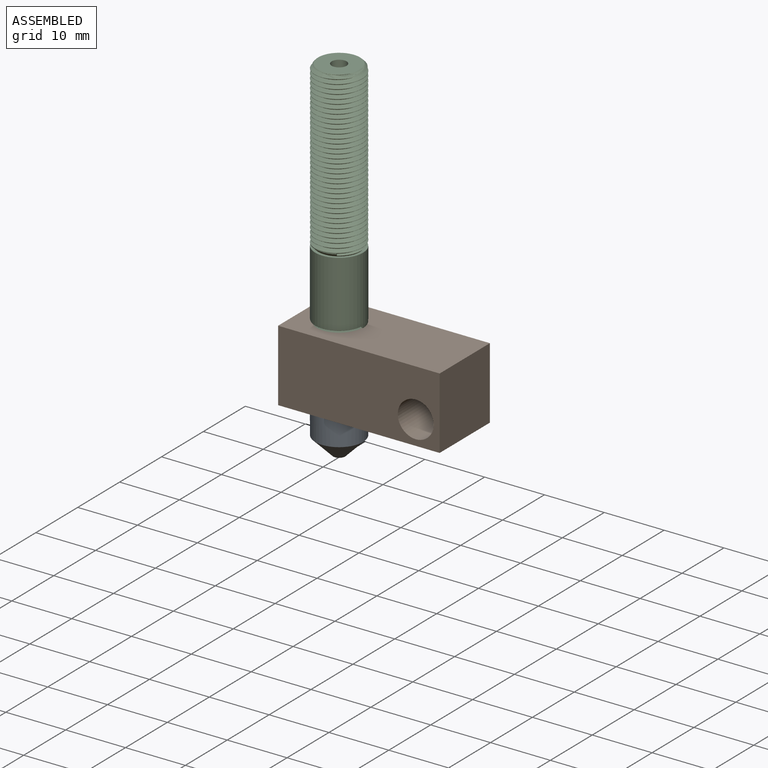
[diagram: assembled view]
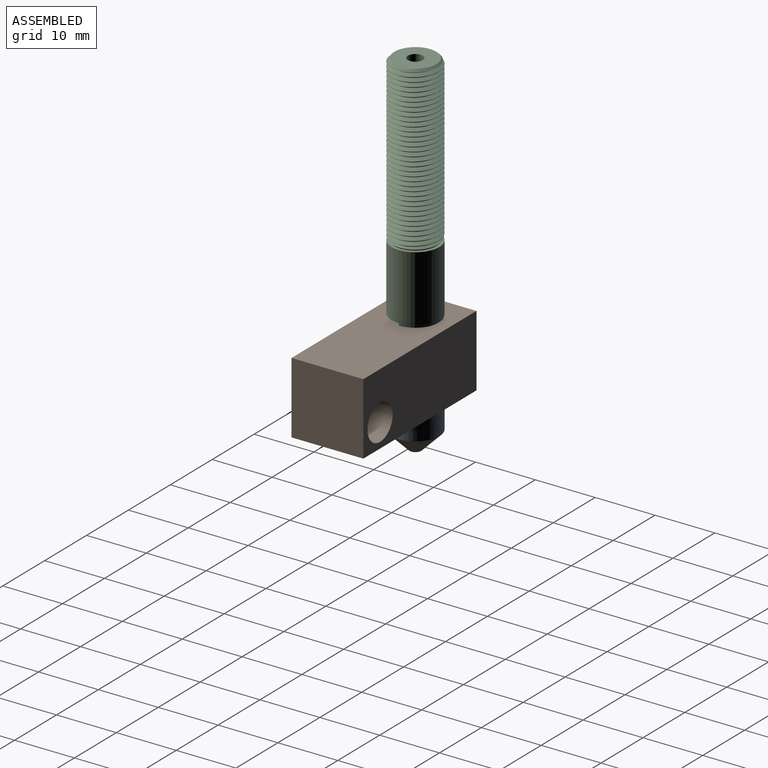
[diagram: assembled view, second angle]
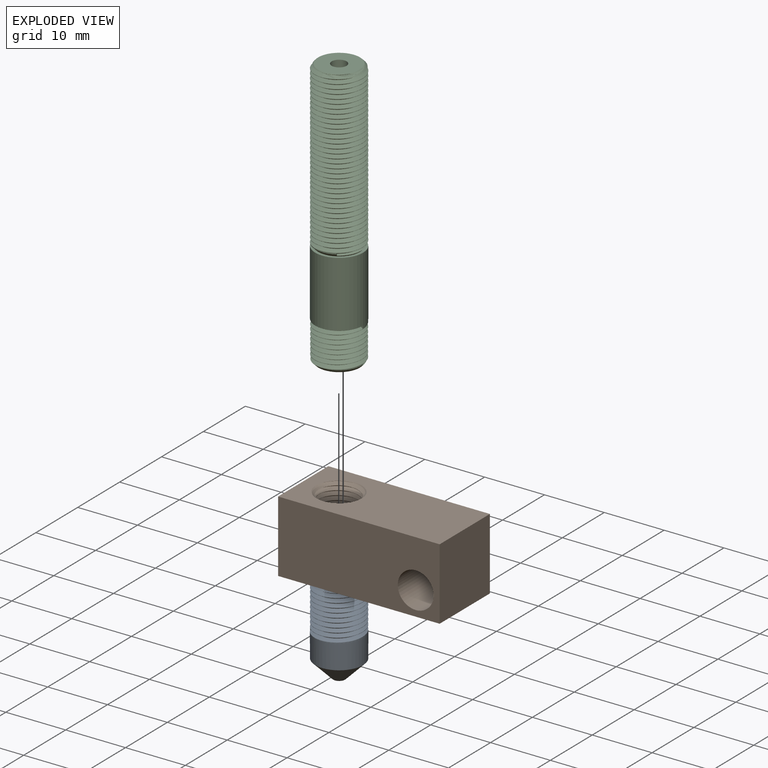
[diagram: exploded view]
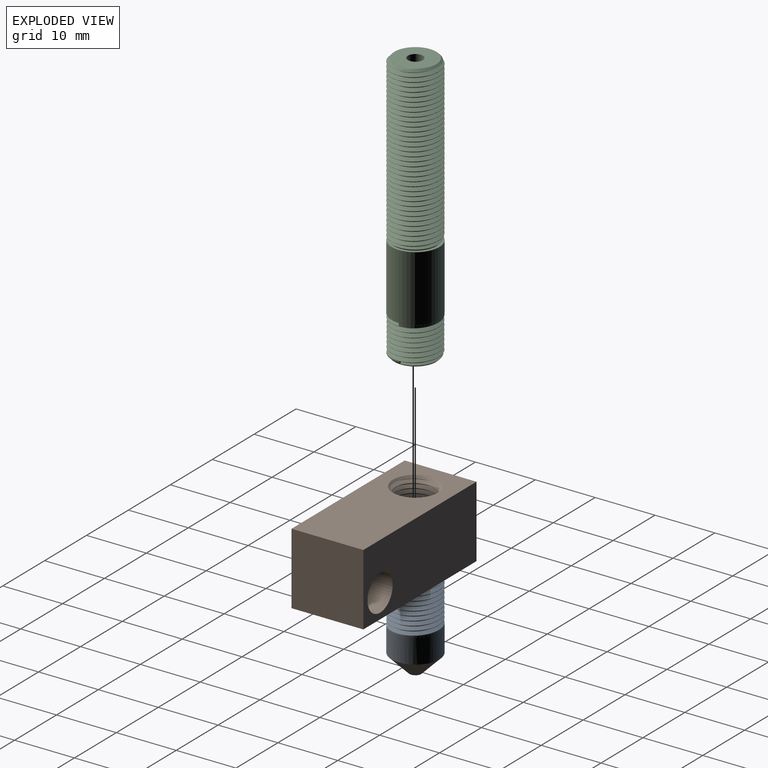
[diagram: exploded view, second angle]
ASSEMBLY  parts=3 mates=2
PART A: 13 faces, bbox 9.3x15.5x8 mm
  f0: cylinder r=4mm len=8mm, axis (0,1,0), area 13.4mm2, adj f2,f3,f4,f5,f6
  f1: plane 7.03x6.98mm, normal (0,-1,0), area 35.2mm2, adj f3,f5,f6,f9
  f2: plane 8x8mm, normal (0,1,0), area 0mm2, adj f0,f7
  f3: cone r=3.5mm half-angle=45deg, axis (0,1,0), area 7.4mm2, adj f0,f1,f5,f6
  f4: plane 0.7x0.53mm, normal (0.5,0,-0.87), area 0.2mm2, adj f0,f5,f6
  f5: bspline ~9.24x8.1mm, area 157.4mm2, adj f0,f1,f3,f4,f6
  f6: bspline ~9.24x8.1mm, area 164.9mm2, adj f0,f1,f3,f4,f5
  f7: cylinder r=4mm len=8mm, axis (0,-1,0), area 100.5mm2, adj f2,f12
  f8: plane 2x2mm, normal (0,1,0), area 2.9mm2, adj f11,f12
  f9: cylinder r=1mm len=14mm, axis (0,-1,0), area 88mm2, adj f1,f10
  f10: plane 2x2mm, normal (0,-1,0), area 2.9mm2, adj f9,f11
  f11: cylinder r=0.25mm len=1mm, axis (0,1,0), area 1.6mm2, adj f8,f10
  f12: cone r=1mm half-angle=45deg, axis (0,-1,0), area 66.6mm2, adj f7,f8
PART B: 12 faces, bbox 27x12x12.5 mm
  f0: plane 12x12mm, normal (1,0,0), area 144mm2, adj f1,f3,f4,f5
  f1: plane 27.01x12.01mm, normal (0,0,1), area 279.6mm2, adj f0,f2,f4,f5,f8,f9,f10
  f2: plane 12x12mm, normal (-1,0,0), area 144mm2, adj f1,f3,f4,f5
  f3: plane 27x12mm, normal (0,0,-1), area 290.8mm2, adj f0,f2,f4,f5,f7
  f4: plane 27x12mm, normal (0,-1,0), area 295.7mm2, adj f0,f1,f2,f3,f6
  f5: plane 27x12mm, normal (0,1,0), area 295.7mm2, adj f0,f1,f2,f3,f6
  f6: cylinder r=3mm len=12mm, axis (0,-1,0), area 226.2mm2, adj f4,f5
  f7: cylinder r=3.25mm len=11.5mm, axis (0,0,1), area -17.5mm2, adj f3,f8,f9,f10,f11
  f8: cone r=3.75mm half-angle=45deg, axis (0,0,1), area 7.2mm2, adj f1,f7,f9,f10
  f9: bspline ~12.1x8.91mm, area 234.9mm2, adj f1,f7,f8,f10,f11
  f10: bspline ~12.1x8.91mm, area 242.4mm2, adj f1,f7,f8,f9,f11
  f11: plane 0.7x0.61mm, normal (0,1,0), area 0.2mm2, adj f7,f9,f10
PART C: 21 faces, bbox 8x9.3x45.5 mm
  f0: cylinder r=3.98mm len=7.95mm, axis (0,0,1), area 8.9mm2, adj f11,f12,f13,f14,f15,f17
  f1: cylinder r=4mm len=26.5mm, axis (0,0,-1), area -123mm2, adj f3,f4,f5,f6,f7
  f2: plane 7.03x6.98mm, normal (0,0,1), area 33.4mm2, adj f4,f6,f7,f18
  f3: cone r=4mm half-angle=45deg, axis (0,0,1), area 13mm2, adj f1,f5,f6,f9
  f4: cone r=3.5mm half-angle=45deg, axis (0,0,-1), area 7.4mm2, adj f1,f2,f6,f7
  f5: plane 0.53x0.52mm, normal (0.87,0.5,0), area 0.1mm2, adj f1,f3,f6,f7
  f6: bspline ~27.6x9.24mm, area 586.3mm2, adj f1,f2,f3,f4,f5,f7
  f7: bspline ~27.6x9.24mm, area 580mm2, adj f1,f2,f4,f5,f6
  f8: cylinder r=4mm len=11mm, axis (0,0,1), area 276.5mm2, adj f9,f11
  f9: plane 8x8mm, normal (0,0,1), area 11.8mm2, adj f3,f8
  f10: plane 6.95x6.95mm, normal (0,0,-1), area 24.1mm2, adj f12,f20
  f11: cone r=3.5mm half-angle=45deg, axis (0,0,1), area 0.9mm2, adj f0,f8,f16
  f12: cone r=3.47mm half-angle=45deg, axis (0,0,1), area 13mm2, adj f0,f10,f14,f15
  f13: plane 0.7x0.6mm, normal (0,-1,0), area 0.2mm2, adj f0,f15,f16,f17
  f14: plane 0.6x0.51mm, normal (0,1,0), area 0.1mm2, adj f0,f12,f15,f17
  f15: bspline ~9.18x7.95mm, area 130.3mm2, adj f0,f12,f13,f14,f17
  f16: cylinder r=3.98mm len=5.17mm, axis (0,0,-1), area 0.8mm2, adj f11,f13,f17
  f17: bspline ~9.18x7.95mm, area 126.3mm2, adj f0,f13,f14,f15,f16
  f18: cylinder r=1.25mm len=5mm, axis (0,0,1), area 39.3mm2, adj f2,f19
  f19: plane 4.2x4.2mm, normal (0,0,-1), area 8.9mm2, adj f18,f20
  f20: cylinder r=2.1mm len=40mm, axis (0,0,-1), area 527.8mm2, adj f10,f19
PLACE A rot(axis=(-1,0,0),90deg) t=(-17.77,-6.46,-3.53)mm
PLACE B t=(-10.27,-6.46,-0.35)mm
PLACE C t=(-17.77,-6.46,30.81)mm
MATE slider C.f0 <-> B.f7  axis (0,0,1) through (-17.77,-6.46,44.56)mm
MATE slider A.f0 <-> C.f0  axis (0,0,1) through (-17.77,-6.46,0.47)mm
